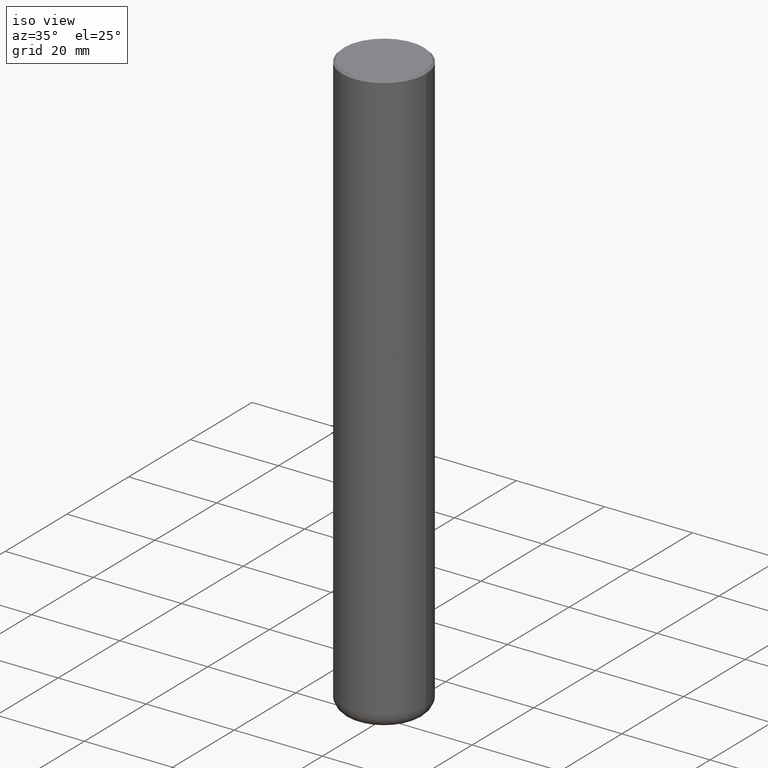
[diagram: clean part render]
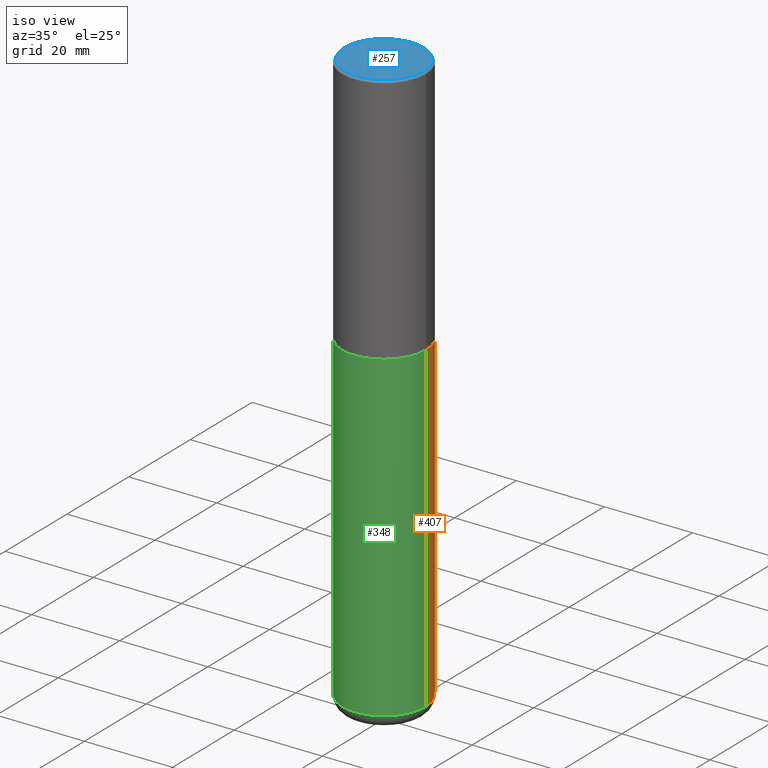
[diagram: same view with three faces highlighted in distinct colors, each labeled with its STEP entity id]
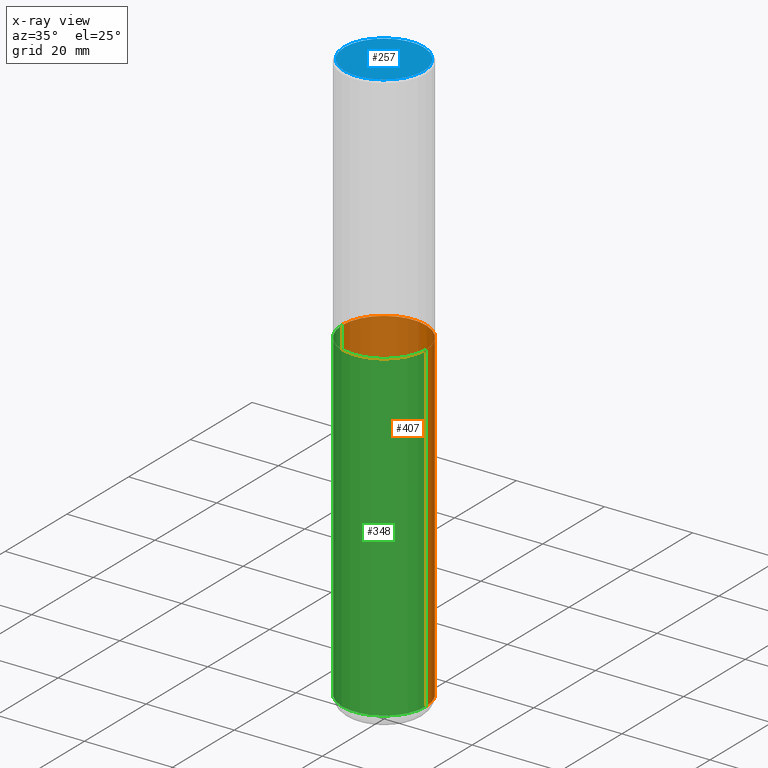
[diagram: x-ray of the same camera — body ghosted, the three highlighted faces saturated]
A machine part, iso view with three faces highlighted in distinct colors.
The next image is the same camera in x-ray (body ghosted, the three faces saturated) — at least one of them is partly hidden behind the body in this view.
Their STEP definitions:

[orange] entity #407 — the highlighted cylindrical surface (partial cylindrical patch) has radius 9.525 mm, axis along (-0, 0, 1).
#3 = CYLINDRICAL_SURFACE ( 'NONE', #14, 0.3750000000000000555 ) ;
#5 = CARTESIAN_POINT ( 'NONE',  ( 1.254525497572975083E-28, -1.791129926826533659E-14, -5.129999999999999893 ) ) ;
#14 = AXIS2_PLACEMENT_3D ( 'NONE', #273, #391, #105 ) ;
#15 = EDGE_CURVE ( 'NONE', #289, #409, #113, .T. ) ;
#27 = CARTESIAN_POINT ( 'NONE',  ( -0.3750000000000000555, 2.664535259100376091E-15, -1.844600658845589598E-29 ) ) ;
#66 = CARTESIAN_POINT ( 'NONE',  ( -0.3749999999999996669, -1.524676400916496405E-14, -5.129999999999999893 ) ) ;
#67 = CARTESIAN_POINT ( 'NONE',  ( 0.3750000000000000555, -2.618611004132350016E-15, 1.828566290923476203E-29 ) ) ;
#74 = ORIENTED_EDGE ( 'NONE', *, *, #397, .F. ) ;
#105 = DIRECTION ( 'NONE',  ( 1.000000000000000000, -6.982962677686265922E-15, 4.876176775795935793E-29 ) ) ;
#113 = CIRCLE ( 'NONE', #220, 0.3750000000000000555 ) ;
#121 = DIRECTION ( 'NONE',  ( -2.445468806185136597E-29, 3.491481338843145583E-15, 1.000000000000000000 ) ) ;
#133 = DIRECTION ( 'NONE',  ( -2.445468806185136597E-29, 3.491481338843145583E-15, 1.000000000000000000 ) ) ;
#171 = DIRECTION ( 'NONE',  ( -2.445468806185136877E-29, 3.491481338843145188E-15, 1.000000000000000000 ) ) ;
#183 = CIRCLE ( 'NONE', #228, 0.3750000000000000555 ) ;
#205 = DIRECTION ( 'NONE',  ( 1.000000000000000000, -6.982962677686261189E-15, 0.000000000000000000 ) ) ;
#210 = ORIENTED_EDGE ( 'NONE', *, *, #212, .T. ) ;
#212 = EDGE_CURVE ( 'NONE', #243, #409, #323, .T. ) ;
#216 = ORIENTED_EDGE ( 'NONE', *, *, #362, .T. ) ;
#220 = AXIS2_PLACEMENT_3D ( 'NONE', #380, #121, #339 ) ;
#228 = AXIS2_PLACEMENT_3D ( 'NONE', #5, #133, #205 ) ;
#240 = FACE_OUTER_BOUND ( 'NONE', #377, .T. ) ;
#243 = VERTEX_POINT ( 'NONE', #66 ) ;
#251 = CARTESIAN_POINT ( 'NONE',  ( 0.3750000000000000555, -1.047444401652942689E-14, -2.250000000000000000 ) ) ;
#273 = CARTESIAN_POINT ( 'NONE',  ( 0.000000000000000000, 0.000000000000000000, 0.000000000000000000 ) ) ;
#287 = VERTEX_POINT ( 'NONE', #315 ) ;
#289 = VERTEX_POINT ( 'NONE', #251 ) ;
#292 = VECTOR ( 'NONE', #171, 39.37007874015748143 ) ;
#294 = DIRECTION ( 'NONE',  ( -2.445468806185136877E-29, 3.491481338843145188E-15, 1.000000000000000000 ) ) ;
#315 = CARTESIAN_POINT ( 'NONE',  ( 0.3749999999999996669, -2.052991027239768345E-14, -5.129999999999999893 ) ) ;
#323 = LINE ( 'NONE', #27, #398 ) ;
#339 = DIRECTION ( 'NONE',  ( 1.000000000000000000, -6.982962677686264344E-15, 0.000000000000000000 ) ) ;
#358 = LINE ( 'NONE', #67, #292 ) ;
#362 = EDGE_CURVE ( 'NONE', #287, #243, #183, .T. ) ;
#367 = CARTESIAN_POINT ( 'NONE',  ( -0.3750000000000000555, -1.021903088123083182E-14, -2.250000000000000000 ) ) ;
#377 = EDGE_LOOP ( 'NONE', ( #216, #210, #395, #74 ) ) ;
#380 = CARTESIAN_POINT ( 'NONE',  ( 5.502304813916557343E-29, -7.855833012397078448E-15, -2.250000000000000000 ) ) ;
#391 = DIRECTION ( 'NONE',  ( -2.445468806185136597E-29, 3.491481338843145583E-15, 1.000000000000000000 ) ) ;
#395 = ORIENTED_EDGE ( 'NONE', *, *, #15, .F. ) ;
#397 = EDGE_CURVE ( 'NONE', #287, #289, #358, .T. ) ;
#398 = VECTOR ( 'NONE', #294, 39.37007874015748143 ) ;
#407 = ADVANCED_FACE ( 'NONE', ( #240 ), #3, .T. ) ;
#409 = VERTEX_POINT ( 'NONE', #367 ) ;

[blue] entity #257 — the highlighted planar face has unit normal (0, -0, -1).
#12 = CIRCLE ( 'NONE', #119, 0.3549999999999999822 ) ;
#20 = EDGE_CURVE ( 'NONE', #45, #241, #413, .T. ) ;
#43 = EDGE_LOOP ( 'NONE', ( #369, #245 ) ) ;
#45 = VERTEX_POINT ( 'NONE', #317 ) ;
#84 = DIRECTION ( 'NONE',  ( -2.445468806185136597E-29, 3.491481338843145583E-15, 1.000000000000000000 ) ) ;
#86 = EDGE_CURVE ( 'NONE', #241, #45, #12, .T. ) ;
#100 = AXIS2_PLACEMENT_3D ( 'NONE', #370, #260, #314 ) ;
#119 = AXIS2_PLACEMENT_3D ( 'NONE', #157, #84, #401 ) ;
#157 = CARTESIAN_POINT ( 'NONE',  ( -1.565777121502829671E-45, 2.235514755570671047E-31, 6.402768735150616610E-17 ) ) ;
#172 = DIRECTION ( 'NONE',  ( 2.438088387897960049E-29, -3.491481338843145188E-15, -1.000000000000000000 ) ) ;
#179 = DIRECTION ( 'NONE',  ( -1.000000000000000000, 6.982962677686265922E-15, -4.876176775795935793E-29 ) ) ;
#204 = PLANE ( 'NONE',  #234 ) ;
#234 = AXIS2_PLACEMENT_3D ( 'NONE', #330, #172, #179 ) ;
#241 = VERTEX_POINT ( 'NONE', #386 ) ;
#245 = ORIENTED_EDGE ( 'NONE', *, *, #86, .T. ) ;
#257 = ADVANCED_FACE ( 'NONE', ( #359 ), #204, .F. ) ;
#260 = DIRECTION ( 'NONE',  ( -2.445468806185136597E-29, 3.491481338843145583E-15, 1.000000000000000000 ) ) ;
#314 = DIRECTION ( 'NONE',  ( 1.000000000000000000, -6.982962677686265922E-15, 4.876231632511988183E-29 ) ) ;
#317 = CARTESIAN_POINT ( 'NONE',  ( -0.3549999999999999822, 2.513866563967055464E-15, 6.402768735148871255E-17 ) ) ;
#330 = CARTESIAN_POINT ( 'NONE',  ( 2.478951750578624209E-15, 0.3549999999999999822, -1.207462031613563440E-15 ) ) ;
#359 = FACE_OUTER_BOUND ( 'NONE', #43, .T. ) ;
#369 = ORIENTED_EDGE ( 'NONE', *, *, #20, .T. ) ;
#370 = CARTESIAN_POINT ( 'NONE',  ( -1.565777121502829671E-45, 2.235514755570671047E-31, 6.402768735150616610E-17 ) ) ;
#386 = CARTESIAN_POINT ( 'NONE',  ( 0.3549999999999999822, -2.538996582575041048E-15, 6.402768735152371826E-17 ) ) ;
#401 = DIRECTION ( 'NONE',  ( 1.000000000000000000, -6.982962677686265922E-15, 4.876231632511988183E-29 ) ) ;
#413 = CIRCLE ( 'NONE', #100, 0.3549999999999999822 ) ;

[green] entity #348 — the highlighted cylindrical surface (partial cylindrical patch) has radius 9.525 mm, axis along (-0, 0, 1).
#8 = EDGE_LOOP ( 'NONE', ( #309, #396, #193, #176 ) ) ;
#23 = DIRECTION ( 'NONE',  ( -2.445468806185136597E-29, 3.491481338843145583E-15, 1.000000000000000000 ) ) ;
#27 = CARTESIAN_POINT ( 'NONE',  ( -0.3750000000000000555, 2.664535259100376091E-15, -1.844600658845589598E-29 ) ) ;
#46 = AXIS2_PLACEMENT_3D ( 'NONE', #88, #381, #93 ) ;
#49 = EDGE_CURVE ( 'NONE', #243, #287, #263, .T. ) ;
#66 = CARTESIAN_POINT ( 'NONE',  ( -0.3749999999999996669, -1.524676400916496405E-14, -5.129999999999999893 ) ) ;
#67 = CARTESIAN_POINT ( 'NONE',  ( 0.3750000000000000555, -2.618611004132350016E-15, 1.828566290923476203E-29 ) ) ;
#88 = CARTESIAN_POINT ( 'NONE',  ( 0.000000000000000000, 0.000000000000000000, 0.000000000000000000 ) ) ;
#93 = DIRECTION ( 'NONE',  ( 1.000000000000000000, -6.982962677686265922E-15, 4.876176775795935793E-29 ) ) ;
#126 = CYLINDRICAL_SURFACE ( 'NONE', #46, 0.3750000000000000555 ) ;
#155 = CARTESIAN_POINT ( 'NONE',  ( 1.254525497572975083E-28, -1.791129926826533659E-14, -5.129999999999999893 ) ) ;
#171 = DIRECTION ( 'NONE',  ( -2.445468806185136877E-29, 3.491481338843145188E-15, 1.000000000000000000 ) ) ;
#176 = ORIENTED_EDGE ( 'NONE', *, *, #335, .F. ) ;
#188 = AXIS2_PLACEMENT_3D ( 'NONE', #155, #23, #229 ) ;
#193 = ORIENTED_EDGE ( 'NONE', *, *, #397, .T. ) ;
#212 = EDGE_CURVE ( 'NONE', #243, #409, #323, .T. ) ;
#229 = DIRECTION ( 'NONE',  ( 1.000000000000000000, -6.982962677686261189E-15, 0.000000000000000000 ) ) ;
#232 = DIRECTION ( 'NONE',  ( -2.445468806185136597E-29, 3.491481338843145583E-15, 1.000000000000000000 ) ) ;
#243 = VERTEX_POINT ( 'NONE', #66 ) ;
#251 = CARTESIAN_POINT ( 'NONE',  ( 0.3750000000000000555, -1.047444401652942689E-14, -2.250000000000000000 ) ) ;
#254 = CARTESIAN_POINT ( 'NONE',  ( 5.502304813916557343E-29, -7.855833012397078448E-15, -2.250000000000000000 ) ) ;
#263 = CIRCLE ( 'NONE', #188, 0.3750000000000000555 ) ;
#264 = CIRCLE ( 'NONE', #356, 0.3750000000000000555 ) ;
#287 = VERTEX_POINT ( 'NONE', #315 ) ;
#289 = VERTEX_POINT ( 'NONE', #251 ) ;
#292 = VECTOR ( 'NONE', #171, 39.37007874015748143 ) ;
#294 = DIRECTION ( 'NONE',  ( -2.445468806185136877E-29, 3.491481338843145188E-15, 1.000000000000000000 ) ) ;
#309 = ORIENTED_EDGE ( 'NONE', *, *, #212, .F. ) ;
#315 = CARTESIAN_POINT ( 'NONE',  ( 0.3749999999999996669, -2.052991027239768345E-14, -5.129999999999999893 ) ) ;
#320 = FACE_OUTER_BOUND ( 'NONE', #8, .T. ) ;
#323 = LINE ( 'NONE', #27, #398 ) ;
#335 = EDGE_CURVE ( 'NONE', #409, #289, #264, .T. ) ;
#348 = ADVANCED_FACE ( 'NONE', ( #320 ), #126, .T. ) ;
#356 = AXIS2_PLACEMENT_3D ( 'NONE', #254, #232, #375 ) ;
#358 = LINE ( 'NONE', #67, #292 ) ;
#367 = CARTESIAN_POINT ( 'NONE',  ( -0.3750000000000000555, -1.021903088123083182E-14, -2.250000000000000000 ) ) ;
#375 = DIRECTION ( 'NONE',  ( 1.000000000000000000, -6.982962677686264344E-15, 0.000000000000000000 ) ) ;
#381 = DIRECTION ( 'NONE',  ( -2.445468806185136597E-29, 3.491481338843145583E-15, 1.000000000000000000 ) ) ;
#396 = ORIENTED_EDGE ( 'NONE', *, *, #49, .T. ) ;
#397 = EDGE_CURVE ( 'NONE', #287, #289, #358, .T. ) ;
#398 = VECTOR ( 'NONE', #294, 39.37007874015748143 ) ;
#409 = VERTEX_POINT ( 'NONE', #367 ) ;